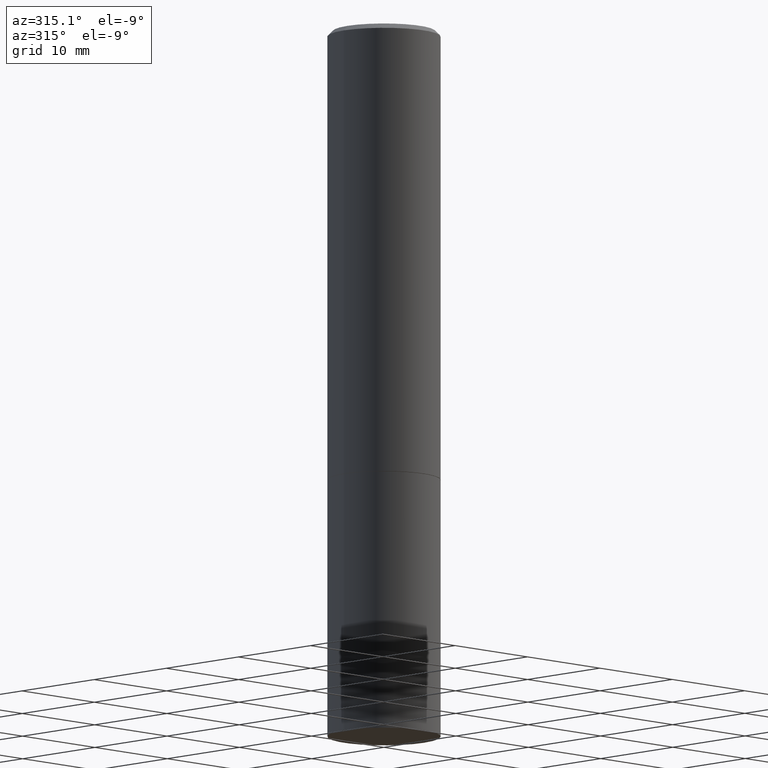
[diagram: clean part render]
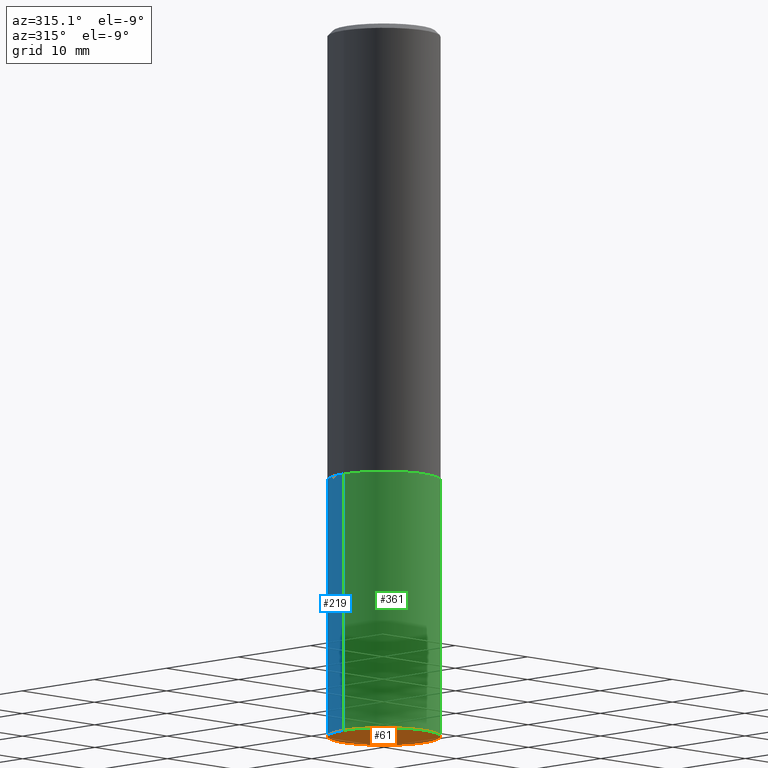
[diagram: same view with three faces highlighted in distinct colors, each labeled with its STEP entity id]
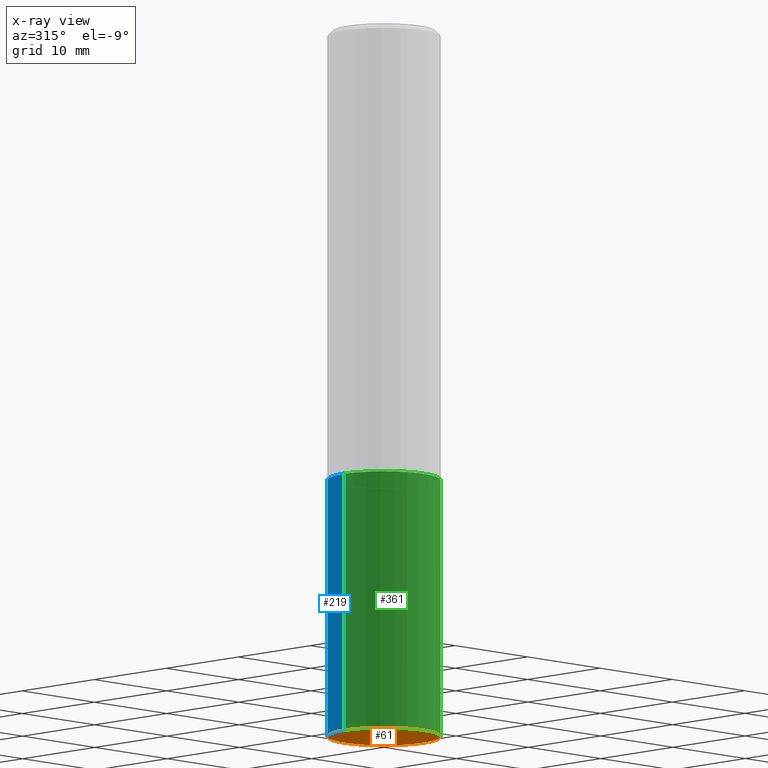
[diagram: x-ray of the same camera — body ghosted, the three highlighted faces saturated]
A machine part, auxiliary view with three faces highlighted in distinct colors.
The next image is the same camera in x-ray (body ghosted, the three faces saturated) — at least one of them is partly hidden behind the body in this view.
Their STEP definitions:

[orange] entity #61 — the highlighted planar face has unit normal (0, -0, -1).
#8 = FACE_OUTER_BOUND ( 'NONE', #43, .T. ) ;
#16 = EDGE_CURVE ( 'NONE', #53, #221, #323, .T. ) ;
#20 = DIRECTION ( 'NONE',  ( 1.000000000000000000, -6.982962677686262766E-15, 0.000000000000000000 ) ) ;
#34 = CARTESIAN_POINT ( 'NONE',  ( 1.527523085743937699E-15, 0.2187499999999903966, -2.750000000000000444 ) ) ;
#43 = EDGE_LOOP ( 'NONE', ( #234, #204 ) ) ;
#53 = VERTEX_POINT ( 'NONE', #318 ) ;
#61 = ADVANCED_FACE ( 'NONE', ( #8 ), #62, .T. ) ;
#62 = PLANE ( 'NONE',  #191 ) ;
#66 = EDGE_CURVE ( 'NONE', #221, #53, #157, .T. ) ;
#87 = AXIS2_PLACEMENT_3D ( 'NONE', #126, #152, #287 ) ;
#107 = AXIS2_PLACEMENT_3D ( 'NONE', #279, #170, #20 ) ;
#126 = CARTESIAN_POINT ( 'NONE',  ( 6.725039217009124520E-29, -9.601573681818649859E-15, -2.750000000000000000 ) ) ;
#152 = DIRECTION ( 'NONE',  ( -2.445468806185136597E-29, 3.491481338843145583E-15, 1.000000000000000000 ) ) ;
#157 = CIRCLE ( 'NONE', #87, 0.2187500000000000000 ) ;
#158 = DIRECTION ( 'NONE',  ( 2.438088387897960049E-29, -3.491481338843145188E-15, -1.000000000000000000 ) ) ;
#170 = DIRECTION ( 'NONE',  ( -2.445468806185136597E-29, 3.491481338843145583E-15, 1.000000000000000000 ) ) ;
#191 = AXIS2_PLACEMENT_3D ( 'NONE', #34, #158, #344 ) ;
#204 = ORIENTED_EDGE ( 'NONE', *, *, #66, .F. ) ;
#220 = CARTESIAN_POINT ( 'NONE',  ( -0.2187500000000000000, -6.301520777921857714E-15, -2.750000000000000000 ) ) ;
#221 = VERTEX_POINT ( 'NONE', #220 ) ;
#234 = ORIENTED_EDGE ( 'NONE', *, *, #16, .F. ) ;
#279 = CARTESIAN_POINT ( 'NONE',  ( 6.725039217009124520E-29, -9.601573681818649859E-15, -2.750000000000000000 ) ) ;
#287 = DIRECTION ( 'NONE',  ( 1.000000000000000000, -6.982962677686262766E-15, 0.000000000000000000 ) ) ;
#318 = CARTESIAN_POINT ( 'NONE',  ( 0.2187500000000000000, -1.112909676756251991E-14, -2.750000000000000000 ) ) ;
#323 = CIRCLE ( 'NONE', #107, 0.2187500000000000000 ) ;
#344 = DIRECTION ( 'NONE',  ( -1.000000000000000000, 6.982962677686265922E-15, -4.876176775795935793E-29 ) ) ;

[blue] entity #219 — the highlighted cylindrical surface (partial cylindrical patch) has radius 5.5562 mm, axis along (-0, 0, 1).
#16 = EDGE_CURVE ( 'NONE', #53, #221, #323, .T. ) ;
#19 = VERTEX_POINT ( 'NONE', #116 ) ;
#20 = DIRECTION ( 'NONE',  ( 1.000000000000000000, -6.982962677686262766E-15, 0.000000000000000000 ) ) ;
#30 = LINE ( 'NONE', #345, #314 ) ;
#50 = ORIENTED_EDGE ( 'NONE', *, *, #251, .T. ) ;
#53 = VERTEX_POINT ( 'NONE', #318 ) ;
#67 = CARTESIAN_POINT ( 'NONE',  ( 4.279570410823988484E-29, -6.110092342975504671E-15, -1.750000000000000000 ) ) ;
#72 = AXIS2_PLACEMENT_3D ( 'NONE', #268, #352, #110 ) ;
#74 = EDGE_CURVE ( 'NONE', #19, #106, #269, .T. ) ;
#75 = ORIENTED_EDGE ( 'NONE', *, *, #127, .F. ) ;
#95 = CARTESIAN_POINT ( 'NONE',  ( -0.2187500000000000000, -6.301520777921857714E-15, -1.750000000000000000 ) ) ;
#106 = VERTEX_POINT ( 'NONE', #95 ) ;
#107 = AXIS2_PLACEMENT_3D ( 'NONE', #279, #170, #20 ) ;
#110 = DIRECTION ( 'NONE',  ( 1.000000000000000000, -6.982962677686266711E-15, 4.876176775795935232E-29 ) ) ;
#116 = CARTESIAN_POINT ( 'NONE',  ( 0.2187500000000000000, -7.637615428719375514E-15, -1.750000000000000000 ) ) ;
#127 = EDGE_CURVE ( 'NONE', #53, #19, #30, .T. ) ;
#136 = EDGE_LOOP ( 'NONE', ( #300, #50, #196, #75 ) ) ;
#160 = CARTESIAN_POINT ( 'NONE',  ( -0.2187500000000000000, 1.554312234475219157E-15, -1.076017050993260622E-29 ) ) ;
#167 = VECTOR ( 'NONE', #293, 39.37007874015748143 ) ;
#170 = DIRECTION ( 'NONE',  ( -2.445468806185136597E-29, 3.491481338843145583E-15, 1.000000000000000000 ) ) ;
#196 = ORIENTED_EDGE ( 'NONE', *, *, #74, .F. ) ;
#205 = DIRECTION ( 'NONE',  ( -2.445468806185136597E-29, 3.491481338843145583E-15, 1.000000000000000000 ) ) ;
#207 = DIRECTION ( 'NONE',  ( 1.000000000000000000, -6.982962677686267499E-15, 0.000000000000000000 ) ) ;
#219 = ADVANCED_FACE ( 'NONE', ( #244 ), #296, .T. ) ;
#220 = CARTESIAN_POINT ( 'NONE',  ( -0.2187500000000000000, -6.301520777921857714E-15, -2.750000000000000000 ) ) ;
#221 = VERTEX_POINT ( 'NONE', #220 ) ;
#233 = AXIS2_PLACEMENT_3D ( 'NONE', #67, #205, #207 ) ;
#244 = FACE_OUTER_BOUND ( 'NONE', #136, .T. ) ;
#251 = EDGE_CURVE ( 'NONE', #221, #106, #356, .T. ) ;
#261 = DIRECTION ( 'NONE',  ( -2.445468806185136877E-29, 3.491481338843145188E-15, 1.000000000000000000 ) ) ;
#268 = CARTESIAN_POINT ( 'NONE',  ( 0.000000000000000000, 0.000000000000000000, 0.000000000000000000 ) ) ;
#269 = CIRCLE ( 'NONE', #233, 0.2187500000000000000 ) ;
#279 = CARTESIAN_POINT ( 'NONE',  ( 6.725039217009124520E-29, -9.601573681818649859E-15, -2.750000000000000000 ) ) ;
#293 = DIRECTION ( 'NONE',  ( -2.445468806185136877E-29, 3.491481338843145188E-15, 1.000000000000000000 ) ) ;
#296 = CYLINDRICAL_SURFACE ( 'NONE', #72, 0.2187500000000000000 ) ;
#300 = ORIENTED_EDGE ( 'NONE', *, *, #16, .T. ) ;
#314 = VECTOR ( 'NONE', #261, 39.37007874015748143 ) ;
#318 = CARTESIAN_POINT ( 'NONE',  ( 0.2187500000000000000, -1.112909676756251991E-14, -2.750000000000000000 ) ) ;
#323 = CIRCLE ( 'NONE', #107, 0.2187500000000000000 ) ;
#345 = CARTESIAN_POINT ( 'NONE',  ( 0.2187500000000000000, -1.527523085743870843E-15, 1.066663669705360885E-29 ) ) ;
#352 = DIRECTION ( 'NONE',  ( -2.445468806185136597E-29, 3.491481338843145583E-15, 1.000000000000000000 ) ) ;
#356 = LINE ( 'NONE', #160, #167 ) ;

[green] entity #361 — the highlighted cylindrical surface (partial cylindrical patch) has radius 5.5562 mm, axis along (-0, 0, 1).
#12 = EDGE_CURVE ( 'NONE', #106, #19, #165, .T. ) ;
#19 = VERTEX_POINT ( 'NONE', #116 ) ;
#30 = LINE ( 'NONE', #345, #314 ) ;
#51 = FACE_OUTER_BOUND ( 'NONE', #229, .T. ) ;
#53 = VERTEX_POINT ( 'NONE', #318 ) ;
#66 = EDGE_CURVE ( 'NONE', #221, #53, #157, .T. ) ;
#87 = AXIS2_PLACEMENT_3D ( 'NONE', #126, #152, #287 ) ;
#95 = CARTESIAN_POINT ( 'NONE',  ( -0.2187500000000000000, -6.301520777921857714E-15, -1.750000000000000000 ) ) ;
#106 = VERTEX_POINT ( 'NONE', #95 ) ;
#116 = CARTESIAN_POINT ( 'NONE',  ( 0.2187500000000000000, -7.637615428719375514E-15, -1.750000000000000000 ) ) ;
#126 = CARTESIAN_POINT ( 'NONE',  ( 6.725039217009124520E-29, -9.601573681818649859E-15, -2.750000000000000000 ) ) ;
#127 = EDGE_CURVE ( 'NONE', #53, #19, #30, .T. ) ;
#128 = AXIS2_PLACEMENT_3D ( 'NONE', #308, #172, #275 ) ;
#152 = DIRECTION ( 'NONE',  ( -2.445468806185136597E-29, 3.491481338843145583E-15, 1.000000000000000000 ) ) ;
#157 = CIRCLE ( 'NONE', #87, 0.2187500000000000000 ) ;
#160 = CARTESIAN_POINT ( 'NONE',  ( -0.2187500000000000000, 1.554312234475219157E-15, -1.076017050993260622E-29 ) ) ;
#165 = CIRCLE ( 'NONE', #128, 0.2187500000000000000 ) ;
#166 = CYLINDRICAL_SURFACE ( 'NONE', #327, 0.2187500000000000000 ) ;
#167 = VECTOR ( 'NONE', #293, 39.37007874015748143 ) ;
#172 = DIRECTION ( 'NONE',  ( -2.445468806185136597E-29, 3.491481338843145583E-15, 1.000000000000000000 ) ) ;
#220 = CARTESIAN_POINT ( 'NONE',  ( -0.2187500000000000000, -6.301520777921857714E-15, -2.750000000000000000 ) ) ;
#221 = VERTEX_POINT ( 'NONE', #220 ) ;
#229 = EDGE_LOOP ( 'NONE', ( #357, #333, #252, #348 ) ) ;
#251 = EDGE_CURVE ( 'NONE', #221, #106, #356, .T. ) ;
#252 = ORIENTED_EDGE ( 'NONE', *, *, #127, .T. ) ;
#253 = CARTESIAN_POINT ( 'NONE',  ( 0.000000000000000000, 0.000000000000000000, 0.000000000000000000 ) ) ;
#261 = DIRECTION ( 'NONE',  ( -2.445468806185136877E-29, 3.491481338843145188E-15, 1.000000000000000000 ) ) ;
#271 = DIRECTION ( 'NONE',  ( -2.445468806185136597E-29, 3.491481338843145583E-15, 1.000000000000000000 ) ) ;
#275 = DIRECTION ( 'NONE',  ( 1.000000000000000000, -6.982962677686267499E-15, 0.000000000000000000 ) ) ;
#287 = DIRECTION ( 'NONE',  ( 1.000000000000000000, -6.982962677686262766E-15, 0.000000000000000000 ) ) ;
#293 = DIRECTION ( 'NONE',  ( -2.445468806185136877E-29, 3.491481338843145188E-15, 1.000000000000000000 ) ) ;
#301 = DIRECTION ( 'NONE',  ( 1.000000000000000000, -6.982962677686266711E-15, 4.876176775795935232E-29 ) ) ;
#308 = CARTESIAN_POINT ( 'NONE',  ( 4.279570410823988484E-29, -6.110092342975504671E-15, -1.750000000000000000 ) ) ;
#314 = VECTOR ( 'NONE', #261, 39.37007874015748143 ) ;
#318 = CARTESIAN_POINT ( 'NONE',  ( 0.2187500000000000000, -1.112909676756251991E-14, -2.750000000000000000 ) ) ;
#327 = AXIS2_PLACEMENT_3D ( 'NONE', #253, #271, #301 ) ;
#333 = ORIENTED_EDGE ( 'NONE', *, *, #66, .T. ) ;
#345 = CARTESIAN_POINT ( 'NONE',  ( 0.2187500000000000000, -1.527523085743870843E-15, 1.066663669705360885E-29 ) ) ;
#348 = ORIENTED_EDGE ( 'NONE', *, *, #12, .F. ) ;
#356 = LINE ( 'NONE', #160, #167 ) ;
#357 = ORIENTED_EDGE ( 'NONE', *, *, #251, .F. ) ;
#361 = ADVANCED_FACE ( 'NONE', ( #51 ), #166, .T. ) ;